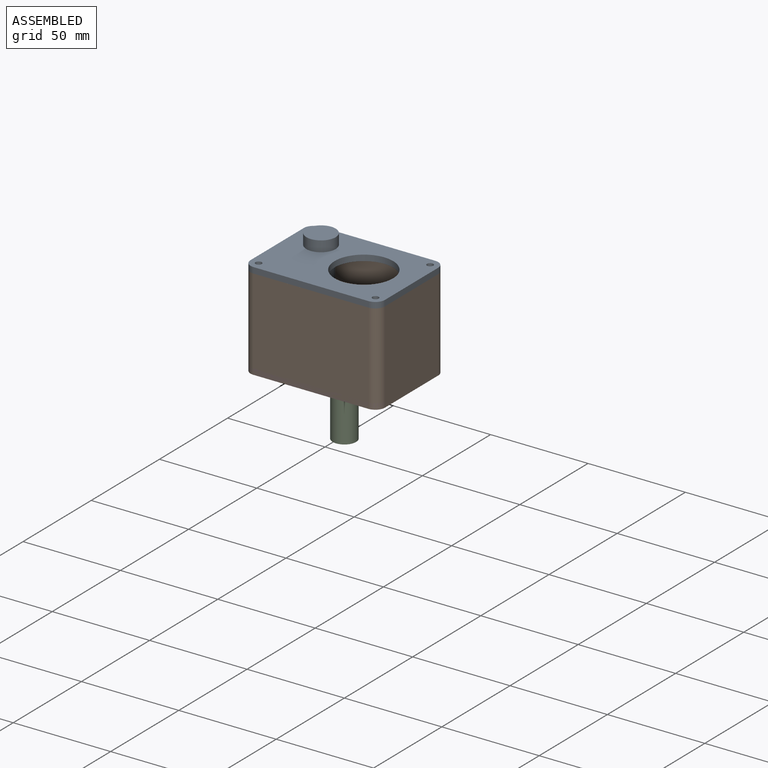
[diagram: assembled view]
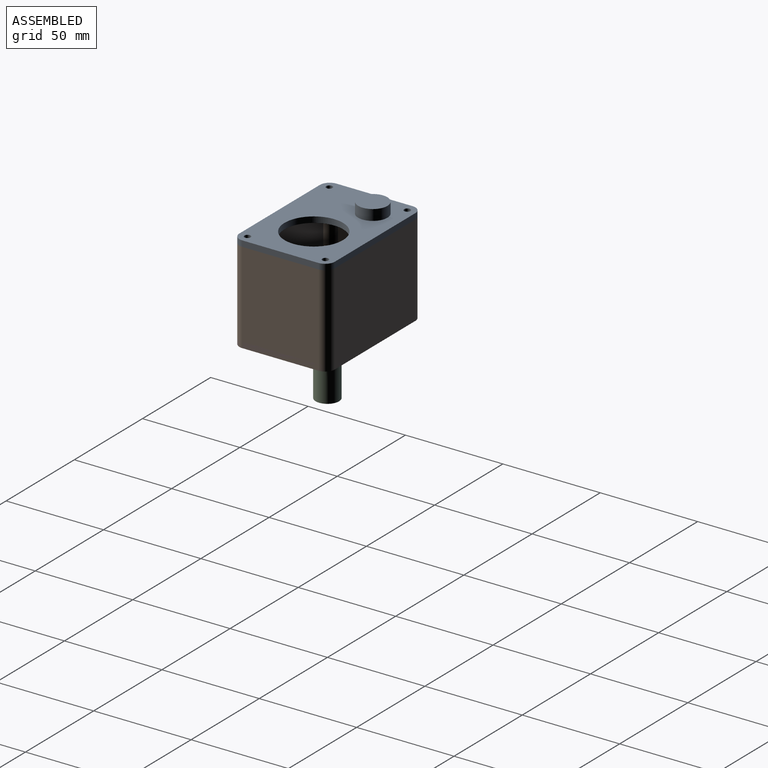
[diagram: assembled view, second angle]
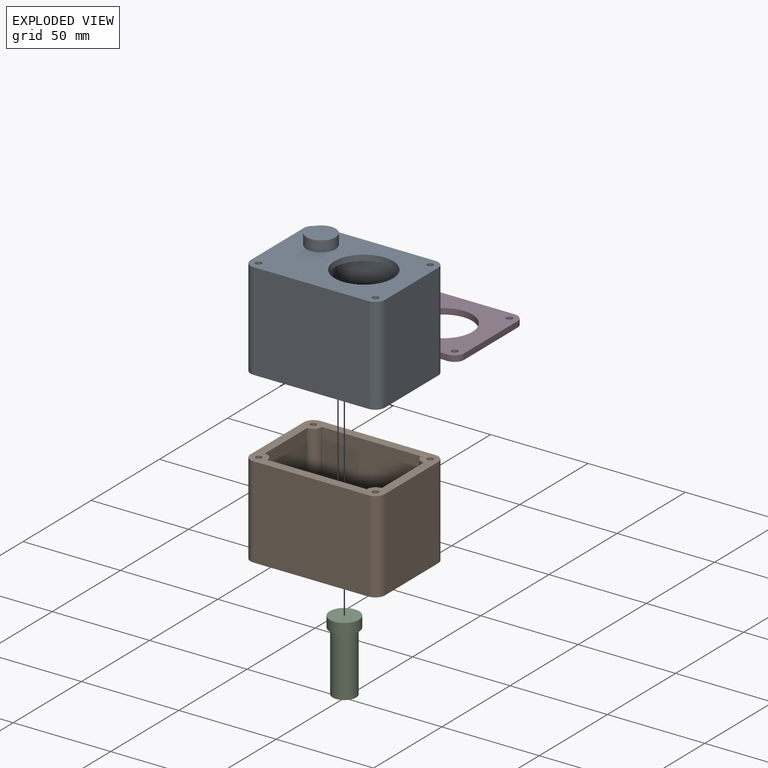
[diagram: exploded view]
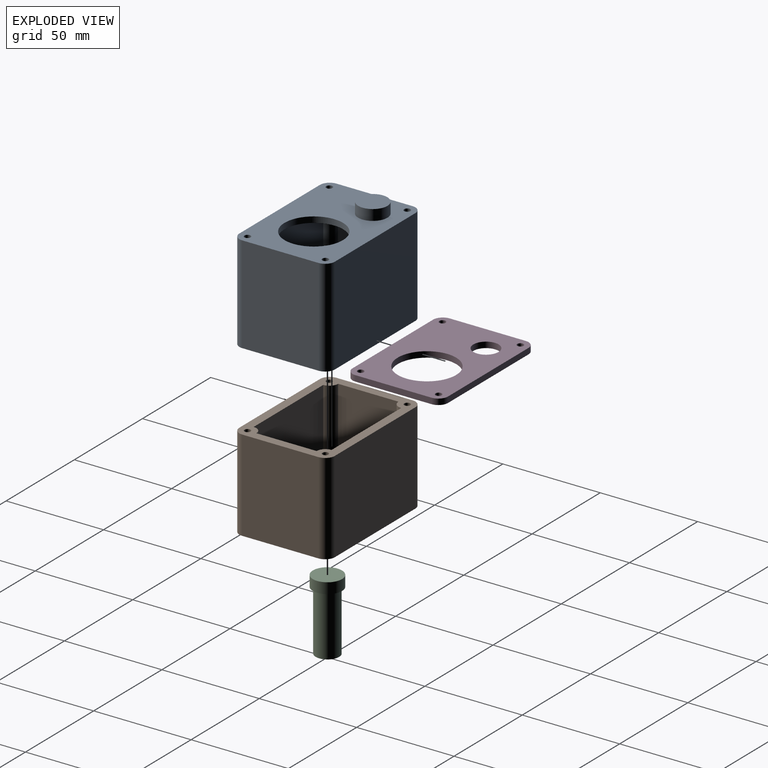
[diagram: exploded view, second angle]
FCSTD DOCUMENT  (FreeCAD 0.20R29603 (Git))
Label: usb_pd_psu_case
License: All rights reserved
LicenseURL: http://en.wikipedia.org/wiki/All_rights_reserved
objects: PartDesign::Plane×17, PartDesign::CoordinateSystem×11, Sketcher::SketchObject×11, PartDesign::Pocket×6, PartDesign::Pad×4, App::Part×4, App::DocumentObjectGroup×3, App::Link×3, PartDesign::Body×3, App::FeaturePython×1, PartDesign::Revolution×1
note: 64 computed .brp shape members not serialized (recipe doc carries the construction recipe); baked Part::Feature solids carry a one-line shape summary decoded from their .brp

FEATURE [PartDesign::CoordinateSystem] LCS_Origin
  AttacherType = Attacher::AttachEngine3D
  MapMode = 2
  Support = -> [X_Axis]
FEATURE [App::DocumentObjectGroup] Constraints
FEATURE [App::FeaturePython] Variables  # WARN: FeaturePython — macro-defined, semantics opaque (R4)
  Type = App::PropertyContainer
  base_thickness = 2
  box_mounting_hole_depth = 10
  box_mounting_hole_diameter = 3.1
  corner_radius = 5
  inner_depth = 45
  inner_height = 40
  inner_width = 60
  lid_mounting_hole_diameter = 3.2
  lid_thickness = 3
  wall_thickness = 4.5
FEATURE [App::DocumentObjectGroup] Configurations
FEATURE [PartDesign::CoordinateSystem] LCS_0
  AttacherType = Attacher::AttachEngine3D
  MapMode = 2
  Support = -> [X_Axis001]
FEATURE [PartDesign::CoordinateSystem] LCS_0002
  AttacherType = Attacher::AttachEngine3D
  MapMode = 2
  Support = -> [X_Axis003]
FEATURE [PartDesign::Plane] DatumPlane  label="Lid Panel Bottom"
  Length = 80.7473
  MapMode = 5
  ResizeMode = 0
  Support = -> [XY_Plane004]
  Width = 61.7473
FEATURE [PartDesign::Plane] DatumPlane001  label="Lid Panel Top"
  AttachmentOffset = pos=(0,0,3) rot=(0,0,1;0rad)
  Length = 80.7473
  MapMode = 5
  Placement = pos=(0,0,3) rot=(0,0,1;0rad)
  ResizeMode = 0
  Support = -> [XY_Plane004]
  Width = 61.7473
  expr: .AttachmentOffset.Base.z = Variables.lid_thickness
FEATURE [Sketcher::SketchObject] Sketch
  FullyConstrained = true
  MapMode = 5
  Support = -> [DatumPlane]
  expr: .Constraints.height = Variables.inner_height + 2 * Variables.wall_thickness
  expr: .Constraints.width = <<Variables>>.inner_width + 2 * Variables.wall_thickness
  expr: Constraints[29] = Variables.corner_radius
  sketch-geometry (12):
    g0: LineSegment StartX=-34.5 StartY=24.5 StartZ=0 EndX=34.5 EndY=24.5 EndZ=0
    g1: LineSegment StartX=34.5 StartY=24.5 StartZ=0 EndX=34.5 EndY=-24.5 EndZ=0
    g2: LineSegment StartX=34.5 StartY=-24.5 StartZ=0 EndX=-34.5 EndY=-24.5 EndZ=0
    g3: LineSegment StartX=-34.5 StartY=-24.5 StartZ=0 EndX=-34.5 EndY=24.5 EndZ=0
    g4: LineSegment StartX=-29.5 StartY=24.5 StartZ=0 EndX=29.5 EndY=24.5 EndZ=0
    g5: LineSegment StartX=34.5 StartY=19.5 StartZ=0 EndX=34.5 EndY=-19.5 EndZ=0
    g6: LineSegment StartX=29.5 StartY=-24.5 StartZ=0 EndX=-29.5 EndY=-24.5 EndZ=0
    g7: LineSegment StartX=-34.5 StartY=-19.5 StartZ=0 EndX=-34.5 EndY=19.5 EndZ=0
    g8: ArcOfCircle CenterX=-29.5 CenterY=19.5 CenterZ=0 NormalX=0 NormalY=0 NormalZ=1 AngleXU=0 Radius=5 StartAngle=1.5708 EndAngle=3.14159
    g9: ArcOfCircle CenterX=-29.5 CenterY=-19.5 CenterZ=0 NormalX=0 NormalY=0 NormalZ=1 AngleXU=0 Radius=5 StartAngle=3.14159 EndAngle=4.71239
    g10: ArcOfCircle CenterX=29.5 CenterY=-19.5 CenterZ=0 NormalX=0 NormalY=0 NormalZ=1 AngleXU=0 Radius=5 StartAngle=4.71239 EndAngle=6.28319
    g11: ArcOfCircle CenterX=29.5 CenterY=19.5 CenterZ=0 NormalX=0 NormalY=0 NormalZ=1 AngleXU=0 Radius=5 StartAngle=1e-16 EndAngle=1.5708
  constraints (30):
    c: Coincident(g0,g1)
    c: Coincident(g1,g2)
    c: Coincident(g2,g3)
    c: Coincident(g3,g0)
    c: Horizontal(g2)
    c: Vertical(g3)
    c: Symmetric(g0,g0,g-2)
    c: Symmetric(g0,g1,g-1)
    c: DistanceX(g0,g0) = 69  'width'
    c: DistanceY(g1,g1) = 49  'height'
    c: Horizontal(g4)
    c: Horizontal(g6)
    c: Vertical(g5)
    c: Vertical(g7)
    c: Tangent(g4,g8) = 1.5708
    c: Tangent(g7,g8) = 1.5708
    c: Tangent(g7,g9) = 1.5708
    c: Tangent(g6,g9) = 1.5708
    c: Tangent(g6,g10) = 1.5708
    c: Tangent(g5,g10) = 1.5708
    c: Tangent(g5,g11) = 1.5708
    c: Tangent(g4,g11) = 1.5708
    c: PointOnObject(g4,g0)
    c: PointOnObject(g7,g3)
    c: PointOnObject(g5,g1)
    c: PointOnObject(g6,g2)
    c: Equal(g8,g9)
    c: Equal(g9,g10)
    c: Equal(g10,g11)
    c: Radius(g9) = 5
FEATURE [PartDesign::Pad] Pad  label="Lid Panel"
  Direction = (0,0,1)
  Length = 10
  Length2 = 10
  Profile = -> Sketch
  ReferenceAxis = -> Sketch [N_Axis]
  Type = 3
  UpToFace = -> DatumPlane001 [Plane]
FEATURE [Sketcher::SketchObject] Sketch001
  FullyConstrained = true
  MapMode = 5
  Placement = pos=(0,0,3) rot=(0,0,1;0rad)
  Support = -> [DatumPlane001]
  expr: Constraints[17] = Variables.lid_mounting_hole_diameter
  expr: Constraints[8] = Variables.inner_width
  expr: Constraints[9] = Variables.inner_height
  sketch-geometry (8):
    g0: LineSegment StartX=-30 StartY=20 StartZ=0 EndX=30 EndY=20 EndZ=0
    g1: LineSegment StartX=30 StartY=20 StartZ=0 EndX=30 EndY=-20 EndZ=0
    g2: LineSegment StartX=30 StartY=-20 StartZ=0 EndX=-30 EndY=-20 EndZ=0
    g3: LineSegment StartX=-30 StartY=-20 StartZ=0 EndX=-30 EndY=20 EndZ=0
    g4: Circle CenterX=-30 CenterY=20 CenterZ=0 NormalX=0 NormalY=0 NormalZ=1 AngleXU=0 Radius=1.6
    g5: Circle CenterX=30 CenterY=20 CenterZ=0 NormalX=0 NormalY=0 NormalZ=1 AngleXU=0 Radius=1.6
    g6: Circle CenterX=30 CenterY=-20 CenterZ=0 NormalX=0 NormalY=0 NormalZ=1 AngleXU=0 Radius=1.6
    g7: Circle CenterX=-30 CenterY=-20 CenterZ=0 NormalX=0 NormalY=0 NormalZ=1 AngleXU=0 Radius=1.6
  constraints (18):
    c: Coincident(g0,g1)
    c: Coincident(g1,g2)
    c: Coincident(g2,g3)
    c: Coincident(g3,g0)
    c: Horizontal(g2)
    c: Vertical(g3)
    c: Symmetric(g0,g0,g-2)
    c: Symmetric(g0,g1,g-1)
    c: DistanceX(g0,g0) = 60
    c: DistanceY(g1,g1) = 40
    c: Coincident(g4,g0)
    c: Coincident(g5,g0)
    c: Coincident(g6,g1)
    c: Coincident(g7,g2)
    c: Equal(g4,g5)
    c: Equal(g5,g6)
    c: Equal(g6,g7)
    c: Diameter(g7) = 3.2
FEATURE [PartDesign::Pocket] Pocket  label="Lid Mounting Holes"
  BaseFeature = -> Pad
  Direction = (0,0,-1)
  Length = 0
  Length2 = 5
  Profile = -> Sketch001
  ReferenceAxis = -> Sketch001 [N_Axis]
  Type = 3
  UpToFace = -> DatumPlane [Plane]
FEATURE [PartDesign::Plane] DatumPlane002  label="Box Body Outer Bottom"
  Length = 80.7473
  MapMode = 5
  ResizeMode = 0
  Support = -> [XY_Plane003]
  Width = 61.7473
FEATURE [PartDesign::Plane] DatumPlane003  label="Box Body Inner Bottom"
  AttachmentOffset = pos=(0,0,2) rot=(0,0,1;0rad)
  Length = 80.7473
  MapMode = 5
  Placement = pos=(0,0,2) rot=(0,0,1;0rad)
  ResizeMode = 0
  Support = -> [XY_Plane003]
  Width = 61.7473
  expr: .AttachmentOffset.Base.z = Variables.base_thickness
FEATURE [PartDesign::Plane] DatumPlane004  label="Box Body Top"
  AttachmentOffset = pos=(0,0,45) rot=(0,0,1;0rad)
  Length = 80.7473
  MapMode = 5
  Placement = pos=(0,0,47) rot=(0,0,1;0rad)
  ResizeMode = 0
  Support = -> [DatumPlane003]
  Width = 61.7473
  expr: .AttachmentOffset.Base.z = Variables.inner_depth
FEATURE [Sketcher::SketchObject] Sketch002
  FullyConstrained = true
  MapMode = 5
  Support = -> [DatumPlane002]
  expr: .Constraints.height = Variables.inner_height + 2 * Variables.wall_thickness
  expr: .Constraints.width = Variables.inner_width + 2 * Variables.wall_thickness
  expr: Constraints[29] = Variables.corner_radius
  sketch-geometry (12):
    g0: LineSegment StartX=-34.5 StartY=24.5 StartZ=0 EndX=34.5 EndY=24.5 EndZ=0
    g1: LineSegment StartX=34.5 StartY=24.5 StartZ=0 EndX=34.5 EndY=-24.5 EndZ=0
    g2: LineSegment StartX=34.5 StartY=-24.5 StartZ=0 EndX=-34.5 EndY=-24.5 EndZ=0
    g3: LineSegment StartX=-34.5 StartY=-24.5 StartZ=0 EndX=-34.5 EndY=24.5 EndZ=0
    g4: LineSegment StartX=-29.5 StartY=24.5 StartZ=0 EndX=29.5 EndY=24.5 EndZ=0
    g5: LineSegment StartX=34.5 StartY=19.5 StartZ=0 EndX=34.5 EndY=-19.5 EndZ=0
    g6: LineSegment StartX=29.5 StartY=-24.5 StartZ=0 EndX=-29.5 EndY=-24.5 EndZ=0
    g7: LineSegment StartX=-34.5 StartY=-19.5 StartZ=0 EndX=-34.5 EndY=19.5 EndZ=0
    g8: ArcOfCircle CenterX=-29.5 CenterY=19.5 CenterZ=0 NormalX=0 NormalY=0 NormalZ=1 AngleXU=0 Radius=5 StartAngle=1.5708 EndAngle=3.14159
    g9: ArcOfCircle CenterX=-29.5 CenterY=-19.5 CenterZ=0 NormalX=0 NormalY=0 NormalZ=1 AngleXU=0 Radius=5 StartAngle=3.14159 EndAngle=4.71239
    g10: ArcOfCircle CenterX=29.5 CenterY=-19.5 CenterZ=0 NormalX=0 NormalY=0 NormalZ=1 AngleXU=0 Radius=5 StartAngle=4.71239 EndAngle=6.28319
    g11: ArcOfCircle CenterX=29.5 CenterY=19.5 CenterZ=0 NormalX=0 NormalY=0 NormalZ=1 AngleXU=0 Radius=5 StartAngle=-9e-16 EndAngle=1.5708
  constraints (30):
    c: Coincident(g0,g1)
    c: Coincident(g1,g2)
    c: Coincident(g2,g3)
    c: Coincident(g3,g0)
    c: Horizontal(g2)
    c: Vertical(g3)
    c: Symmetric(g0,g0,g-2)
    c: Symmetric(g0,g1,g-1)
    c: DistanceX(g0,g0) = 69  'width'
    c: DistanceY(g1,g1) = 49  'height'
    c: Horizontal(g4)
    c: Horizontal(g6)
    c: Vertical(g5)
    c: Vertical(g7)
    c: Tangent(g4,g8) = 1.5708
    c: Tangent(g7,g8) = 1.5708
    c: Tangent(g7,g9) = 1.5708
    c: Tangent(g6,g9) = 1.5708
    c: Tangent(g6,g10) = 1.5708
    c: Tangent(g5,g10) = 1.5708
    c: Tangent(g4,g11) = 1.5708
    c: Tangent(g5,g11) = 1.5708
    c: Equal(g8,g9)
    c: Equal(g9,g10)
    c: Equal(g10,g11)
    c: PointOnObject(g4,g0)
    c: PointOnObject(g7,g3)
    c: PointOnObject(g5,g1)
    c: PointOnObject(g6,g2)
    c: Radius(g9) = 5
FEATURE [PartDesign::Pad] Pad001  label="Box Body Volume"
  Direction = (0,0,1)
  Length = 10
  Length2 = 10
  Profile = -> Sketch002
  ReferenceAxis = -> Sketch002 [N_Axis]
  Type = 3
  UpToFace = -> DatumPlane004 [Plane]
FEATURE [Sketcher::SketchObject] Sketch003
  FullyConstrained = true
  MapMode = 5
  Placement = pos=(0,0,47) rot=(0,0,1;0rad)
  Support = -> [DatumPlane004]
  expr: .Constraints.height = Variables.inner_height
  expr: .Constraints.width = Variables.inner_width
  sketch-geometry (8):
    g0: LineSegment StartX=-30 StartY=20 StartZ=0 EndX=30 EndY=20 EndZ=0
    g1: LineSegment StartX=30 StartY=20 StartZ=0 EndX=30 EndY=-20 EndZ=0
    g2: LineSegment StartX=30 StartY=-20 StartZ=0 EndX=-30 EndY=-20 EndZ=0
    g3: LineSegment StartX=-30 StartY=-20 StartZ=0 EndX=-30 EndY=20 EndZ=0
    g4: LineSegment StartX=-30 StartY=20 StartZ=0 EndX=30 EndY=20 EndZ=0
    g5: LineSegment StartX=30 StartY=20 StartZ=0 EndX=30 EndY=-20 EndZ=0
    g6: LineSegment StartX=30 StartY=-20 StartZ=0 EndX=-30 EndY=-20 EndZ=0
    g7: LineSegment StartX=-30 StartY=-20 StartZ=0 EndX=-30 EndY=20 EndZ=0
  constraints (20):
    c: Coincident(g0,g1)
    c: Coincident(g1,g2)
    c: Coincident(g2,g3)
    c: Coincident(g3,g0)
    c: Horizontal(g2)
    c: Vertical(g3)
    c: Symmetric(g0,g0,g-2)
    c: Symmetric(g0,g1,g-1)
    c: DistanceX(g0,g0) = 60  'width'
    c: DistanceY(g1,g1) = 40  'height'
    c: Coincident(g4,g5)
    c: Coincident(g5,g6)
    c: Coincident(g6,g7)
    c: Coincident(g7,g4)
    c: Horizontal(g4)
    c: Horizontal(g6)
    c: Vertical(g5)
    c: Vertical(g7)
    c: Coincident(g4,g0)
    c: Coincident(g5,g1)
FEATURE [PartDesign::Pocket] Pocket001  label="Box Inner Volume"
  BaseFeature = -> Pad001
  Direction = (0,0,-1)
  Length = 0
  Length2 = 5
  Profile = -> Sketch003
  ReferenceAxis = -> Sketch003 [N_Axis]
  Type = 3
  UpToFace = -> DatumPlane003
FEATURE [Sketcher::SketchObject] Sketch004
  FullyConstrained = true
  MapMode = 5
  Placement = pos=(0,0,47) rot=(0,0,1;0rad)
  Support = -> [DatumPlane004]
  expr: .Constraints.height = Variables.inner_height
  expr: .Constraints.width = Variables.inner_width
  expr: Constraints[39] = Variables.wall_thickness
  sketch-geometry (16):
    g0: LineSegment StartX=-30 StartY=20 StartZ=0 EndX=30 EndY=20 EndZ=0
    g1: LineSegment StartX=30 StartY=20 StartZ=0 EndX=30 EndY=-20 EndZ=0
    g2: LineSegment StartX=30 StartY=-20 StartZ=0 EndX=-30 EndY=-20 EndZ=0
    g3: LineSegment StartX=-30 StartY=-20 StartZ=0 EndX=-30 EndY=20 EndZ=0
    g4: ArcOfCircle CenterX=-30 CenterY=20 CenterZ=0 NormalX=0 NormalY=0 NormalZ=1 AngleXU=0 Radius=4.5 StartAngle=4.71239 EndAngle=6.28319
    g5: LineSegment StartX=-30 StartY=20 StartZ=0 EndX=-30 EndY=15.5 EndZ=0
    g6: LineSegment StartX=-30 StartY=20 StartZ=0 EndX=-25.5 EndY=20 EndZ=0
    g7: ArcOfCircle CenterX=30 CenterY=20 CenterZ=0 NormalX=0 NormalY=0 NormalZ=1 AngleXU=0 Radius=4.5 StartAngle=3.14159 EndAngle=4.71239
    g8: ArcOfCircle CenterX=30 CenterY=-20 CenterZ=0 NormalX=0 NormalY=0 NormalZ=1 AngleXU=0 Radius=4.5 StartAngle=1.5708 EndAngle=3.14159
    g9: ArcOfCircle CenterX=-30 CenterY=-20 CenterZ=0 NormalX=0 NormalY=0 NormalZ=1 AngleXU=0 Radius=4.5 StartAngle=0 EndAngle=1.5708
    g10: LineSegment StartX=-30 StartY=-15.5 StartZ=0 EndX=-30 EndY=-20 EndZ=0
    g11: LineSegment StartX=-30 StartY=-20 StartZ=0 EndX=-25.5 EndY=-20 EndZ=0
    g12: LineSegment StartX=30 StartY=-15.5 StartZ=0 EndX=30 EndY=-20 EndZ=0
    g13: LineSegment StartX=30 StartY=-20 StartZ=0 EndX=25.5 EndY=-20 EndZ=0
    g14: LineSegment StartX=25.5 StartY=20 StartZ=0 EndX=30 EndY=20 EndZ=0
    g15: LineSegment StartX=30 StartY=20 StartZ=0 EndX=30 EndY=15.5 EndZ=0
  constraints (42):
    c: Coincident(g0,g1)
    c: Coincident(g1,g2)
    c: Coincident(g2,g3)
    c: Coincident(g3,g0)
    c: Horizontal(g2)
    c: Vertical(g3)
    c: Symmetric(g0,g0,g-2)
    c: Symmetric(g0,g1,g-1)
    c: DistanceX(g0,g0) = 60  'width'
    c: DistanceY(g1,g1) = 40  'height'
    c: Coincident(g4,g0)
    c: PointOnObject(g4,g0)
    c: PointOnObject(g4,g3)
    c: Coincident(g5,g4)
    c: Coincident(g5,g4)
    c: Coincident(g6,g4)
    c: Coincident(g6,g4)
    c: Coincident(g7,g0)
    c: PointOnObject(g7,g1)
    c: Coincident(g8,g1)
    c: PointOnObject(g8,g1)
    c: PointOnObject(g8,g2)
    c: Coincident(g9,g2)
    c: PointOnObject(g9,g3)
    c: Coincident(g10,g9)
    c: Coincident(g10,g9)
    c: Coincident(g11,g9)
    c: Coincident(g11,g9)
    c: Coincident(g12,g8)
    c: Coincident(g12,g8)
    c: Coincident(g13,g8)
    c: Coincident(g13,g8)
    c: Coincident(g14,g7)
    c: Coincident(g14,g7)
    c: Coincident(g15,g7)
    c: Coincident(g15,g7)
    c: Equal(g4,g7)
    c: Equal(g7,g8)
    c: Equal(g8,g9)
    c: Radius(g9) = 4.5
    c: PointOnObject(g7,g0)
    c: PointOnObject(g9,g2)
FEATURE [PartDesign::Pad] Pad002  label="Box Inner Mounting Hole Supports"
  BaseFeature = -> Pocket001
  Direction = (0,0,1)
  Length = 10
  Length2 = 10
  Profile = -> Sketch004
  ReferenceAxis = -> Sketch004 [N_Axis]
  Type = 3
  UpToFace = -> DatumPlane003
FEATURE [Sketcher::SketchObject] Sketch005
  FullyConstrained = true
  MapMode = 5
  Placement = pos=(0,0,47) rot=(0,0,1;0rad)
  Support = -> [DatumPlane004]
  expr: .Constraints.height = Variables.inner_height
  expr: .Constraints.width = Variables.inner_width
  expr: Constraints[17] = Variables.box_mounting_hole_diameter
  sketch-geometry (8):
    g0: LineSegment StartX=-30 StartY=20 StartZ=0 EndX=30 EndY=20 EndZ=0
    g1: LineSegment StartX=30 StartY=20 StartZ=0 EndX=30 EndY=-20 EndZ=0
    g2: LineSegment StartX=30 StartY=-20 StartZ=0 EndX=-30 EndY=-20 EndZ=0
    g3: LineSegment StartX=-30 StartY=-20 StartZ=0 EndX=-30 EndY=20 EndZ=0
    g4: Circle CenterX=-30 CenterY=20 CenterZ=0 NormalX=0 NormalY=0 NormalZ=1 AngleXU=0 Radius=1.55
    g5: Circle CenterX=30 CenterY=20 CenterZ=0 NormalX=0 NormalY=0 NormalZ=1 AngleXU=0 Radius=1.55
    g6: Circle CenterX=30 CenterY=-20 CenterZ=0 NormalX=0 NormalY=0 NormalZ=1 AngleXU=0 Radius=1.55
    g7: Circle CenterX=-30 CenterY=-20 CenterZ=0 NormalX=0 NormalY=0 NormalZ=1 AngleXU=0 Radius=1.55
  constraints (18):
    c: Coincident(g0,g1)
    c: Coincident(g1,g2)
    c: Coincident(g2,g3)
    c: Coincident(g3,g0)
    c: Horizontal(g2)
    c: Vertical(g3)
    c: Coincident(g4,g0)
    c: Coincident(g5,g0)
    c: Coincident(g6,g1)
    c: Coincident(g7,g2)
    c: Symmetric(g4,g5,g-2)
    c: Symmetric(g5,g6,g-1)
    c: DistanceX(g0,g0) = 60  'width'
    c: DistanceY(g1,g1) = 40  'height'
    c: Equal(g4,g5)
    c: Equal(g5,g6)
    c: Equal(g6,g7)
    c: Diameter(g7) = 3.1
FEATURE [PartDesign::Plane] DatumPlane005  label="Box Mounting Hole Depth"
  AttachmentOffset = pos=(0,0,-10) rot=(0,0,1;0rad)
  Length = 80.7473
  MapMode = 5
  Placement = pos=(0,0,37) rot=(0,0,1;0rad)
  ResizeMode = 0
  Support = -> [DatumPlane004]
  Width = 61.7473
  expr: .AttachmentOffset.Base.z = -Variables.box_mounting_hole_depth
FEATURE [PartDesign::Pocket] Pocket002  label="Box Mounting Holes"
  BaseFeature = -> Pad002
  Direction = (0,0,-1)
  Length = 0
  Length2 = 5
  Profile = -> Sketch005
  ReferenceAxis = -> Sketch005 [N_Axis]
  Type = 3
  UpToFace = -> DatumPlane005 [Plane]
FEATURE [PartDesign::CoordinateSystem] Local_CS  label="Lid Body Lower Left Mounting Hole Bottom"
  AttacherType = Attacher::AttachEngine3D
  MapMode = 45
  Placement = pos=(-30,-20,0) rot=(0,0,-1;1e-05rad)
  Support = -> [Pocket]
FEATURE [PartDesign::CoordinateSystem] Lid_Lower_Right_Mounting_Hole_Bottom  label="Lid Lower Left Mounting Hole Bottom"
  AttacherType = Attacher::AttachEngine3D
  MapMode = 5
  Placement = pos=(-30,-20,0) rot=(0,0,-1;1e-05rad)
  Support = -> [Local_CS]
FEATURE [PartDesign::CoordinateSystem] Local_CS001  label="Box Body Lower Left Mounting Hole Top"
  AttacherType = Attacher::AttachEngine3D
  MapMode = 45
  Placement = pos=(-30,-20,47) rot=(0,0,1;0rad)
  Support = -> [Pocket002]
FEATURE [PartDesign::CoordinateSystem] Box_Lower_Left_Mounting_Hole_Top  label="Box Lower Left Mounting Hole Top"
  AttacherType = Attacher::AttachEngine3D
  MapMode = 5
  Placement = pos=(-30,-20,47) rot=(0,0,1;0rad)
  Support = -> [Local_CS001]
FEATURE [App::Link] Box_Ass  label="Box Ass"
  AssemblyType = Part::Link
  AttachedBy = #LCS_0
  AttachedTo = Parent Assembly#LCS_Origin
  LinkedObject = -> Box
  SolverId = Asm4EE
  expr: Placement = LCS_Origin.Placement * AttachmentOffset * LCS_0.Placement ^ -1
FEATURE [App::Link] Lid_Ass  label="Lid Ass"
  AssemblyType = Part::Link
  AttachedBy = #Lid_Lower_Right_Mounting_Hole_Bottom
  AttachedTo = Box_Ass#Box_Lower_Left_Mounting_Hole_Top
  LinkPlacement = pos=(-0.000200893,0.000301337,47) rot=(0,0,1;1e-05rad)
  LinkedObject = -> Lid
  Placement = pos=(-0.000200893,0.000301337,47) rot=(0,0,1;1e-05rad)
  SolverId = Asm4EE
  expr: Placement = Box_Ass.Placement * Box_Lower_Left_Mounting_Hole_Top.Placement * AttachmentOffset * Lid_Lower_Right_Mounting_Hole_Bottom.Placement ^ -1
FEATURE [PartDesign::Plane] DatumPlane006  label="Box Body Front Inner"
  AttachmentOffset = pos=(0,0,20) rot=(0,0,1;0rad)
  Length = 83.0968
  MapMode = 5
  Placement = pos=(0,-20,-4.4e-15) rot=(1,0,0;1.5708rad)
  ResizeMode = 0
  Support = -> [XZ_Plane003]
  Width = 86.0968
  expr: .AttachmentOffset.Base.z = Variables.inner_height / 2
FEATURE [PartDesign::Plane] DatumPlane007  label="Box Body Rear Inner"
  AttachmentOffset = pos=(0,0,-20) rot=(0,0,1;0rad)
  Length = 83.0968
  MapMode = 5
  Placement = pos=(0,20,4.4e-15) rot=(1,0,0;1.5708rad)
  ResizeMode = 0
  Support = -> [XZ_Plane003]
  Width = 86.0968
  expr: .AttachmentOffset.Base.z = -Variables.inner_height / 2
FEATURE [PartDesign::Plane] DatumPlane008  label="Box Body Front Outer"
  AttachmentOffset = pos=(0,0,4.5) rot=(0,0,1;0rad)
  Length = 83.0968
  MapMode = 5
  Placement = pos=(0,-24.5,-5.4e-15) rot=(1,0,0;1.5708rad)
  ResizeMode = 0
  Support = -> [DatumPlane006]
  Width = 86.0968
  expr: .AttachmentOffset.Base.z = Variables.wall_thickness
FEATURE [PartDesign::Plane] DatumPlane009  label="Box Body Rear Outer"
  AttachmentOffset = pos=(0,0,-4.5) rot=(0,0,1;0rad)
  Length = 83.0968
  MapMode = 5
  Placement = pos=(0,24.5,5.4e-15) rot=(1,0,0;1.5708rad)
  ResizeMode = 0
  Support = -> [DatumPlane007]
  Width = 86.0968
  expr: .AttachmentOffset.Base.z = -Variables.wall_thickness
FEATURE [PartDesign::Plane] DatumPlane010  label="Box Body Right Inner"
  AttachmentOffset = pos=(0,0,30) rot=(0,0,1;0rad)
  Length = 62
  MapMode = 5
  Placement = pos=(30,-6.7e-15,6.7e-15) rot=(0.57735,0.57735,0.57735;2.0944rad)
  ResizeMode = 0
  Support = -> [YZ_Plane003]
  Width = 84
  expr: .AttachmentOffset.Base.z = Variables.inner_width / 2
FEATURE [PartDesign::Plane] DatumPlane011  label="Box Body Right Outer"
  AttachmentOffset = pos=(0,0,4.5) rot=(0,0,1;0rad)
  Length = 62
  MapMode = 5
  Placement = pos=(34.5,-7.2e-15,7.2e-15) rot=(0.57735,0.57735,0.57735;2.0944rad)
  ResizeMode = 0
  Support = -> [DatumPlane010]
  Width = 84
  expr: .AttachmentOffset.Base.z = Variables.wall_thickness
FEATURE [PartDesign::Plane] DatumPlane012  label="Box Body Left Inner"
  AttachmentOffset = pos=(0,0,-30) rot=(0,0,1;0rad)
  Length = 62
  MapMode = 5
  Placement = pos=(-30,6.7e-15,-6.7e-15) rot=(0.57735,0.57735,0.57735;2.0944rad)
  ResizeMode = 0
  Support = -> [YZ_Plane003]
  Width = 84
  expr: .AttachmentOffset.Base.z = -Variables.inner_width / 2
FEATURE [PartDesign::Plane] DatumPlane013  label="Box Body Left Outer"
  AttachmentOffset = pos=(0,0,-4.5) rot=(0,0,1;0rad)
  Length = 62
  MapMode = 5
  Placement = pos=(-34.5,7.2e-15,-7.2e-15) rot=(0.57735,0.57735,0.57735;2.0944rad)
  ResizeMode = 0
  Support = -> [DatumPlane012]
  Width = 84
  expr: .AttachmentOffset.Base.z = -Variables.wall_thickness
FEATURE [Sketcher::SketchObject] Sketch006
  FullyConstrained = true
  MapMode = 5
  Placement = pos=(0,0,3) rot=(0,0,1;0rad)
  Support = -> [DatumPlane001]
  sketch-geometry (2):
    g0: Circle CenterX=10 CenterY=0 CenterZ=0 NormalX=0 NormalY=0 NormalZ=1 AngleXU=0 Radius=15
    g1: Circle CenterX=-19 CenterY=10 CenterZ=0 NormalX=0 NormalY=0 NormalZ=1 AngleXU=0 Radius=6.5
  constraints (6):
    c: PointOnObject(g0,g-1)
    c: Diameter(g0) = 30
    c: Diameter(g1) = 13
    c: DistanceX(g-1,g0) = 10
    c: DistanceX(g1,g-1) = 19
    c: DistanceY(g-1,g1) = 10
FEATURE [PartDesign::Pocket] Pocket003  label="Lid Panel Cutouts"
  BaseFeature = -> Pocket
  Direction = (0,0,-1)
  Length = 0
  Length2 = 5
  Profile = -> Sketch006
  ReferenceAxis = -> Sketch006 [N_Axis]
  Type = 3
  UpToFace = -> DatumPlane [Plane]
FEATURE [Sketcher::SketchObject] Sketch007
  FullyConstrained = true
  MapMode = 5
  Placement = pos=(-34.5,7.2e-15,-7.2e-15) rot=(0.57735,0.57735,0.57735;2.0944rad)
  Support = -> [DatumPlane013]
  expr: Constraints[8] = Variables.base_thickness
  sketch-geometry (4):
    g0: LineSegment StartX=-8 StartY=10.5 StartZ=0 EndX=8 EndY=10.5 EndZ=0
    g1: LineSegment StartX=8 StartY=10.5 StartZ=0 EndX=8 EndY=2 EndZ=0
    g2: LineSegment StartX=8 StartY=2 StartZ=0 EndX=-8 EndY=2 EndZ=0
    g3: LineSegment StartX=-8 StartY=2 StartZ=0 EndX=-8 EndY=10.5 EndZ=0
  constraints (11):
    c: Coincident(g0,g1)
    c: Coincident(g1,g2)
    c: Coincident(g2,g3)
    c: Coincident(g3,g0)
    c: Horizontal(g0)
    c: Vertical(g1)
    c: Vertical(g3)
    c: Symmetric(g2,g1,g-2)
    c: DistanceY(g-1,g1) = 2
    c: DistanceY(g1,g1) = 8.5  'height'
    c: DistanceX(g0,g0) = 16
FEATURE [PartDesign::Plane] DatumPlane014
  AttachmentOffset = pos=(0,0,15.5) rot=(0,0,1;0rad)
  Length = 62
  MapMode = 5
  Placement = pos=(-14.5,4.9e-15,-4.9e-15) rot=(0.57735,0.57735,0.57735;2.0944rad)
  ResizeMode = 0
  Support = -> [DatumPlane012]
  Width = 84
  expr: .AttachmentOffset.Base.z = 20 - Variables.wall_thickness
FEATURE [Sketcher::SketchObject] Sketch008
  FullyConstrained = true
  MapMode = 5
  Placement = pos=(-30,6.7e-15,-6.7e-15) rot=(0.57735,0.57735,0.57735;2.0944rad)
  Support = -> [DatumPlane012]
  expr: Constraints[8] = Variables.base_thickness
  sketch-geometry (4):
    g0: LineSegment StartX=-11 StartY=13 StartZ=0 EndX=11 EndY=13 EndZ=0
    g1: LineSegment StartX=11 StartY=13 StartZ=0 EndX=11 EndY=2 EndZ=0
    g2: LineSegment StartX=11 StartY=2 StartZ=0 EndX=-11 EndY=2 EndZ=0
    g3: LineSegment StartX=-11 StartY=2 StartZ=0 EndX=-11 EndY=13 EndZ=0
  constraints (11):
    c: Coincident(g0,g1)
    c: Coincident(g1,g2)
    c: Coincident(g2,g3)
    c: Coincident(g3,g0)
    c: Horizontal(g0)
    c: Vertical(g1)
    c: Vertical(g3)
    c: Symmetric(g1,g2,g-2)
    c: DistanceY(g-1,g1) = 2
    c: DistanceX(g0,g0) = 22
    c: DistanceY(g3,g3) = 11  'height'
FEATURE [PartDesign::Pad] Pad003  label="Box Body XT60 Retention"
  BaseFeature = -> Pocket002
  Direction = (1,-1e-16,1e-16)
  Length = 10
  Length2 = 10
  Profile = -> Sketch008
  ReferenceAxis = -> Sketch008 [N_Axis]
  Type = 3
  UpToFace = -> DatumPlane014 [Plane]
FEATURE [PartDesign::Pocket] Pocket004  label="Box Body XT60 Retention Cutout"
  BaseFeature = -> Pad003
  Direction = (-1,0,0)
  Length = 0
  Length2 = 5
  Profile = -> Sketch007
  ReferenceAxis = -> Sketch007 [N_Axis]
  Type = 3
  UpToFace = -> DatumPlane014 [Plane]
FEATURE [PartDesign::Plane] DatumPlane015
  AttachmentOffset = pos=(0,0,8.5) rot=(0,0,1;0rad)
  Length = 80.7473
  MapMode = 5
  Placement = pos=(0,0,10.5) rot=(0,0,1;0rad)
  ResizeMode = 0
  Support = -> [DatumPlane003]
  Width = 61.7473
  expr: .AttachmentOffset.Base.z = <<Sketch007>>.Constraints.height
FEATURE [PartDesign::Plane] DatumPlane016
  AttachmentOffset = pos=(0,0,11) rot=(0,0,1;0rad)
  Length = 80.7473
  MapMode = 5
  Placement = pos=(0,0,13) rot=(0,0,1;0rad)
  ResizeMode = 0
  Support = -> [DatumPlane003]
  Width = 61.7473
  expr: .AttachmentOffset.Base.z = <<Sketch008>>.Constraints.height
FEATURE [Sketcher::SketchObject] Sketch009
  FullyConstrained = true
  MapMode = 5
  Placement = pos=(0,0,13) rot=(0,0,1;0rad)
  Support = -> [DatumPlane016]
  sketch-geometry (1):
    g0: Circle CenterX=-22 CenterY=0 CenterZ=0 NormalX=0 NormalY=0 NormalZ=1 AngleXU=0 Radius=1.5
  constraints (3):
    c: PointOnObject(g0,g-1)
    c: Diameter(g0) = 3
    c: DistanceX(g0,g-1) = 22
FEATURE [PartDesign::Pocket] Pocket005  label="Box Body XT60 Retention Screw Hole"
  BaseFeature = -> Pocket004
  Direction = (0,0,-1)
  Length = 0
  Length2 = 5
  Profile = -> Sketch009
  ReferenceAxis = -> Sketch009 [N_Axis]
  Type = 3
  UpToFace = -> DatumPlane015 [Plane]
FEATURE [PartDesign::Body] Box_Body  label="Box Body"
  Group = -> [LCS_0002,DatumPlane002,DatumPlane003,DatumPlane004,Sketch002,Pad001,Sketch003,Pocket001,Sketch004,Pad002,Sketch005,DatumPlane005,Pocket002,Local_CS001,DatumPlane006,DatumPlane008,DatumPlane007,DatumPlane009,DatumPlane010,DatumPlane011,DatumPlane012,DatumPlane013,Sketch007,DatumPlane014,Sketch008,Pad003,Pocket004,DatumPlane015,DatumPlane016,Sketch009,Pocket005]
  Origin = -> Origin003
  Tip = -> Pocket005
FEATURE [App::Part] Box
  Group = -> [LCS_0,Box_Body,Box_Lower_Left_Mounting_Hole_Top]
  Origin = -> Origin001
FEATURE [PartDesign::CoordinateSystem] LCS_0003
  AttacherType = Attacher::AttachEngine3D
  MapMode = 2
  Support = -> [X_Axis005]
FEATURE [PartDesign::CoordinateSystem] LCS_0004
  AttacherType = Attacher::AttachEngine3D
  MapMode = 2
  Support = -> [X_Axis006]
FEATURE [Sketcher::SketchObject] Sketch010
  FullyConstrained = true
  MapMode = 5
  Placement = pos=(0,0,0) rot=(1,0,0;1.5708rad)
  Support = -> [XZ_Plane006]
  expr: Constraints[15] = 15mm / 2
  expr: Constraints[16] = 12mm / 2
  sketch-geometry (6):
    g0: LineSegment StartX=0 StartY=5.5 StartZ=0 EndX=7.5 EndY=5.5 EndZ=0
    g1: LineSegment StartX=7.5 StartY=5.5 StartZ=0 EndX=7.5 EndY=0 EndZ=0
    g2: LineSegment StartX=7.5 StartY=0 StartZ=0 EndX=6 EndY=0 EndZ=0
    g3: LineSegment StartX=6 StartY=0 StartZ=0 EndX=6 EndY=-31 EndZ=0
    g4: LineSegment StartX=6 StartY=-31 StartZ=0 EndX=0 EndY=-31 EndZ=0
    g5: LineSegment StartX=0 StartY=-31 StartZ=0 EndX=0 EndY=5.5 EndZ=0
  constraints (18):
    c: PointOnObject(g0,g-2)
    c: Horizontal(g0)
    c: Coincident(g0,g1)
    c: PointOnObject(g1,g-1)
    c: Coincident(g1,g2)
    c: PointOnObject(g2,g-1)
    c: Coincident(g2,g3)
    c: Vertical(g3)
    c: Coincident(g3,g4)
    c: PointOnObject(g4,g-2)
    c: Coincident(g4,g5)
    c: Coincident(g5,g0)
    c: Vertical(g1)
    c: Horizontal(g4)
    c: DistanceY(g3,g3) = 31
    c: DistanceX(g0,g0) = 7.5
    c: DistanceX(g4,g4) = 6
    c: DistanceY(g1,g1) = 5.5
FEATURE [PartDesign::Revolution] Revolution
  Angle = 360
  Axis = (0,2e-16,1)
  Base = (0,0,0)
  Placement = pos=(0,0,0) rot=(1,0,0;1.5708rad)
  Profile = -> Sketch010
  ReferenceAxis = -> Sketch010 [V_Axis]
FEATURE [PartDesign::Body] Fuse_Holder_Body  label="Fuse Holder Body"
  Group = -> [LCS_0004,Sketch010,Revolution]
  Origin = -> Origin006
  Tip = -> Revolution
FEATURE [App::Part] Fuse_Holder  label="Fuse Holder"
  Group = -> [LCS_0003,Fuse_Holder_Body]
  Origin = -> Origin005
FEATURE [PartDesign::CoordinateSystem] Local_CS002  label="Lid Fuse Holder Hole Body"
  AttacherType = Attacher::AttachEngine3D
  MapMode = 45
  Placement = pos=(-19,10,3) rot=(0,0,1;0rad)
  Support = -> [Pocket003]
FEATURE [PartDesign::Body] Lid_Body  label="Lid Body"
  Group = -> [DatumPlane,DatumPlane001,Sketch,Pad,Sketch001,Pocket,Local_CS,Sketch006,Pocket003,Local_CS002]
  Origin = -> Origin004
  Tip = -> Pocket003
FEATURE [PartDesign::CoordinateSystem] Lid_Fuse_Holder_Hole  label="Lid Fuse Holder Hole"
  AttacherType = Attacher::AttachEngine3D
  MapMode = 5
  Placement = pos=(-19,10,3) rot=(0,0,1;0rad)
  Support = -> [Local_CS002]
FEATURE [App::Part] Lid
  Group = -> [Lid_Body,Lid_Lower_Right_Mounting_Hole_Bottom,Lid_Fuse_Holder_Hole]
  Origin = -> Origin002
FEATURE [App::DocumentObjectGroup] Parts
  Group = -> [Box,Lid,Fuse_Holder]
FEATURE [App::Link] Fuse_Holder_Ass  label="Fuse Holder Ass"
  AssemblyType = Part::Link
  AttachedBy = #LCS_0003
  AttachedTo = Lid_Ass#Lid_Fuse_Holder_Hole
  LinkPlacement = pos=(-19.0003,10.0001,50) rot=(0,0,1;1e-05rad)
  LinkedObject = -> Fuse_Holder
  Placement = pos=(-19.0003,10.0001,50) rot=(0,0,1;1e-05rad)
  SolverId = Asm4EE
  expr: Placement = Lid_Ass.Placement * Lid_Fuse_Holder_Hole.Placement * AttachmentOffset * LCS_0003.Placement ^ -1
FEATURE [App::Part] Assembly
  AssemblyType = Part::Link
  Group = -> [LCS_Origin,Constraints,Variables,Configurations,Box_Ass,Lid_Ass,Fuse_Holder_Ass]
  Origin = -> Origin
  Type = Assembly
